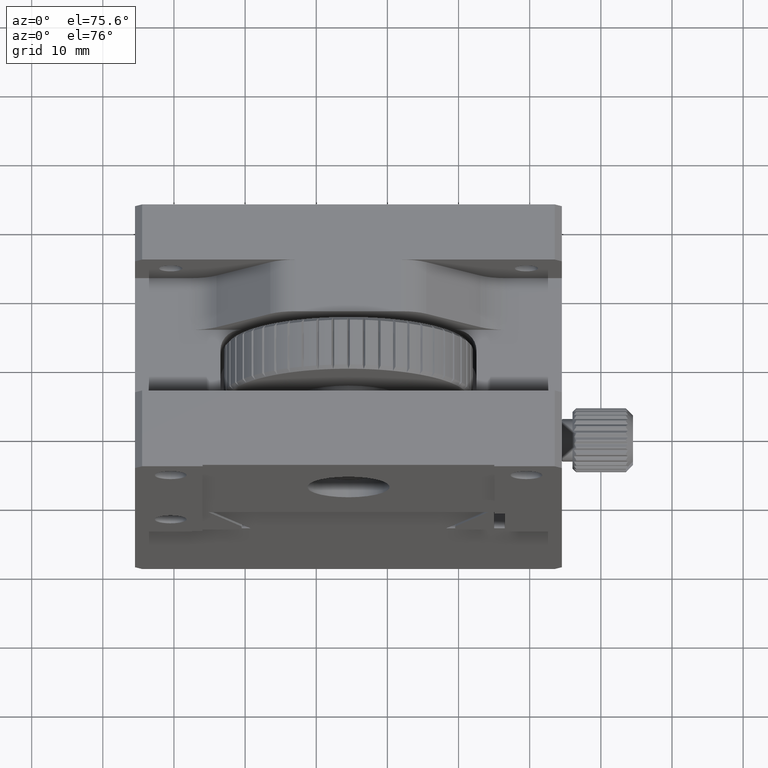
[diagram: clean part render]
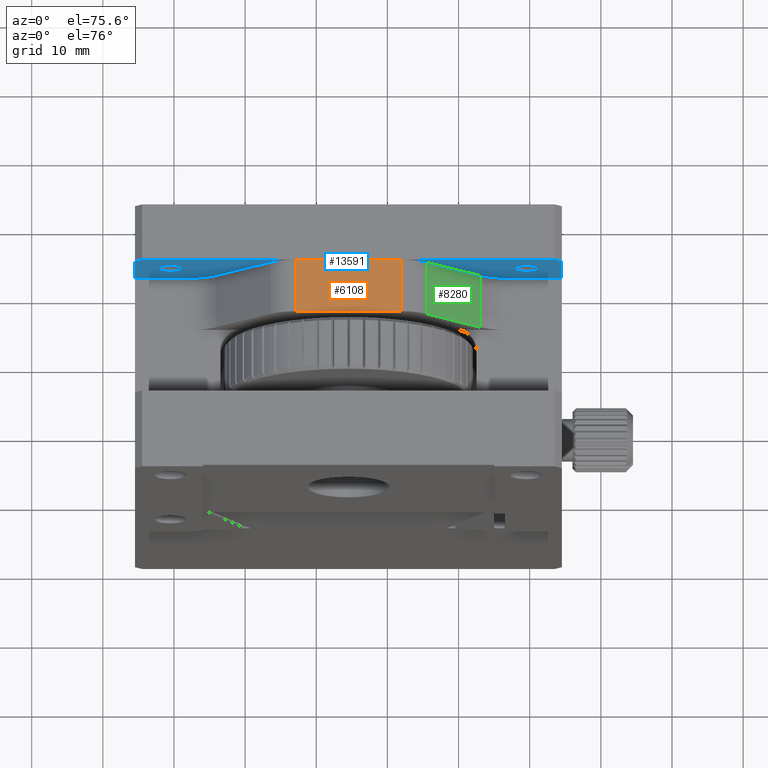
[diagram: same view with three faces highlighted in distinct colors, each labeled with its STEP entity id]
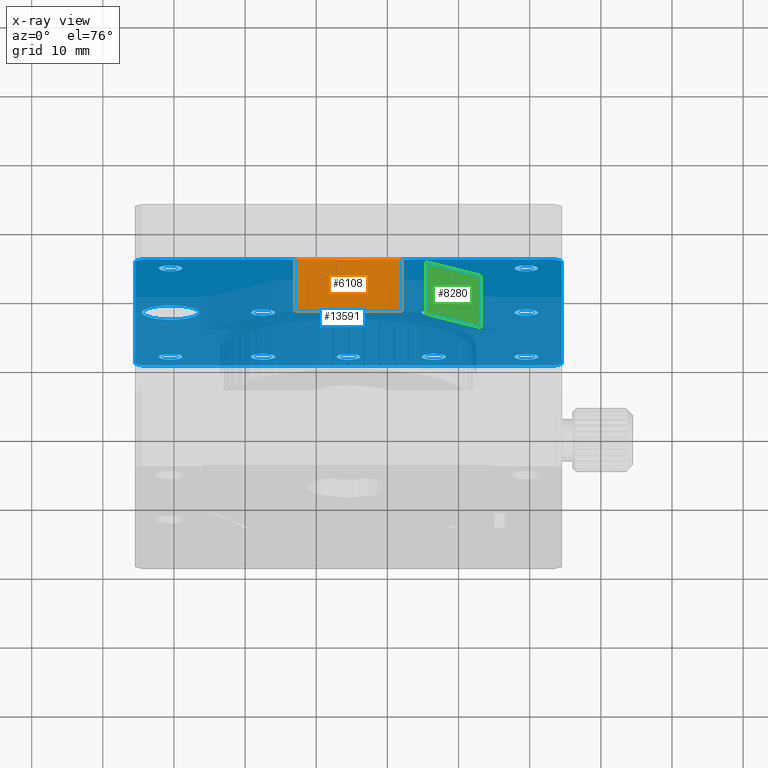
[diagram: x-ray of the same camera — body ghosted, the three highlighted faces saturated]
A machine part, auxiliary view with three faces highlighted in distinct colors.
The next image is the same camera in x-ray (body ghosted, the three faces saturated) — at least one of them is partly hidden behind the body in this view.
Their STEP definitions:

[orange] entity #6108 — the highlighted planar face has unit normal (-0, 0, -1).
#2563 = CARTESIAN_POINT ( 'NONE',  ( 41.95106015016820322, 40.59151725221546769, 95.80549511013728647 ) ) ;
#2827 = EDGE_LOOP ( 'NONE', ( #12907, #14919, #6519, #25784 ) ) ;
#3345 = CARTESIAN_POINT ( 'NONE',  ( 41.95106015016820322, 33.09151725221546769, 95.80549511013728647 ) ) ;
#4065 = LINE ( 'NONE', #20102, #14703 ) ;
#4104 = DIRECTION ( 'NONE',  ( -7.098610909418053587E-15, 0.000000000000000000, -1.000000000000000000 ) ) ;
#4247 = PLANE ( 'NONE',  #5282 ) ;
#4284 = LINE ( 'NONE', #20455, #8356 ) ;
#4597 = EDGE_CURVE ( 'NONE', #21764, #21951, #4065, .T. ) ;
#5179 = VERTEX_POINT ( 'NONE', #8206 ) ;
#5282 = AXIS2_PLACEMENT_3D ( 'NONE', #8145, #4104, #18641 ) ;
#6108 = ADVANCED_FACE ( 'NONE', ( #22310 ), #4247, .F. ) ;
#6519 = ORIENTED_EDGE ( 'NONE', *, *, #13252, .F. ) ;
#7457 = CARTESIAN_POINT ( 'NONE',  ( 4.522127962033668958, 33.09151725221546769, 95.80549511013755648 ) ) ;
#8145 = CARTESIAN_POINT ( 'NONE',  ( 4.522127962033668958, 40.59151725221546769, 95.80549511013755648 ) ) ;
#8206 = CARTESIAN_POINT ( 'NONE',  ( 41.95106015016820322, 40.59151725221546769, 95.80549511013728647 ) ) ;
#8356 = VECTOR ( 'NONE', #15996, 1000.000000000000000 ) ;
#8966 = EDGE_CURVE ( 'NONE', #20197, #21764, #25696, .T. ) ;
#12907 = ORIENTED_EDGE ( 'NONE', *, *, #4597, .F. ) ;
#13209 = DIRECTION ( 'NONE',  ( -0.000000000000000000, -1.000000000000000000, -0.000000000000000000 ) ) ;
#13252 = EDGE_CURVE ( 'NONE', #5179, #20197, #23079, .T. ) ;
#13896 = DIRECTION ( 'NONE',  ( 0.000000000000000000, 1.000000000000000000, 0.000000000000000000 ) ) ;
#14703 = VECTOR ( 'NONE', #13896, 1000.000000000000000 ) ;
#14919 = ORIENTED_EDGE ( 'NONE', *, *, #8966, .F. ) ;
#15416 = DIRECTION ( 'NONE',  ( -1.000000000000000000, 0.000000000000000000, 7.098610909418053587E-15 ) ) ;
#15996 = DIRECTION ( 'NONE',  ( 1.000000000000000000, -0.000000000000000000, -6.982962677686266711E-15 ) ) ;
#18641 = DIRECTION ( 'NONE',  ( -1.000000000000000000, 0.000000000000000000, 7.098610909418053587E-15 ) ) ;
#18870 = VECTOR ( 'NONE', #13209, 1000.000000000000000 ) ;
#20102 = CARTESIAN_POINT ( 'NONE',  ( 27.09319577389917910, 40.59151725221546769, 95.80549511013740016 ) ) ;
#20197 = VERTEX_POINT ( 'NONE', #3345 ) ;
#20416 = EDGE_CURVE ( 'NONE', #21951, #5179, #4284, .T. ) ;
#20455 = CARTESIAN_POINT ( 'NONE',  ( 34.52212796203366452, 40.59151725221546769, 95.80549511013734332 ) ) ;
#21764 = VERTEX_POINT ( 'NONE', #22252 ) ;
#21951 = VERTEX_POINT ( 'NONE', #22901 ) ;
#22252 = CARTESIAN_POINT ( 'NONE',  ( 27.09319577389917910, 33.09151725221546769, 95.80549511013740016 ) ) ;
#22310 = FACE_OUTER_BOUND ( 'NONE', #2827, .T. ) ;
#22901 = CARTESIAN_POINT ( 'NONE',  ( 27.09319577389917910, 40.59151725221546769, 95.80549511013740016 ) ) ;
#23079 = LINE ( 'NONE', #2563, #18870 ) ;
#25696 = LINE ( 'NONE', #7457, #26476 ) ;
#25784 = ORIENTED_EDGE ( 'NONE', *, *, #20416, .F. ) ;
#26476 = VECTOR ( 'NONE', #15416, 1000.000000000000000 ) ;

[blue] entity #13591 — the highlighted planar face has unit normal (0, 1, 0).
#55 = DIRECTION ( 'NONE',  ( 0.000000000000000000, 0.000000000000000000, 1.000000000000000000 ) ) ;
#78 = AXIS2_PLACEMENT_3D ( 'NONE', #12425, #20535, #5833 ) ;
#80 = VECTOR ( 'NONE', #10271, 1000.000000000000000 ) ;
#167 = AXIS2_PLACEMENT_3D ( 'NONE', #12113, #4460, #10246 ) ;
#302 = VERTEX_POINT ( 'NONE', #24460 ) ;
#898 = CARTESIAN_POINT ( 'NONE',  ( 63.52212796202834255, 40.59151725221547480, 95.80549511013829544 ) ) ;
#925 = EDGE_CURVE ( 'NONE', #7728, #7728, #21557, .T. ) ;
#1052 = FACE_BOUND ( 'NONE', #7209, .T. ) ;
#1136 = CARTESIAN_POINT ( 'NONE',  ( 34.52212796202890388, 40.59151725221547480, 83.30549511013803965 ) ) ;
#1149 = ORIENTED_EDGE ( 'NONE', *, *, #9971, .T. ) ;
#1321 = FACE_BOUND ( 'NONE', #21050, .T. ) ;
#1533 = DIRECTION ( 'NONE',  ( 0.000000000000000000, -1.000000000000000000, 0.000000000000000000 ) ) ;
#1556 = CARTESIAN_POINT ( 'NONE',  ( 22.52212796202865519, 40.59151725221547480, 65.80549511013846598 ) ) ;
#1754 = LINE ( 'NONE', #24853, #80 ) ;
#1790 = LINE ( 'NONE', #24613, #25624 ) ;
#2069 = DIRECTION ( 'NONE',  ( 0.000000000000000000, -1.000000000000000000, 0.000000000000000000 ) ) ;
#2138 = EDGE_CURVE ( 'NONE', #5836, #5836, #3504, .T. ) ;
#2221 = DIRECTION ( 'NONE',  ( 0.000000000000000000, -1.000000000000000000, 0.000000000000000000 ) ) ;
#2534 = CARTESIAN_POINT ( 'NONE',  ( 59.52212796202834255, 40.59151725221547480, 65.80549511013829544 ) ) ;
#2631 = CIRCLE ( 'NONE', #17690, 1.649999999999991696 ) ;
#2851 = CARTESIAN_POINT ( 'NONE',  ( 59.52212796202834255, 40.59151725221547480, 92.45549511013828692 ) ) ;
#3256 = VERTEX_POINT ( 'NONE', #18750 ) ;
#3346 = EDGE_CURVE ( 'NONE', #7791, #24306, #1754, .T. ) ;
#3487 = PLANE ( 'NONE',  #5099 ) ;
#3504 = CIRCLE ( 'NONE', #14704, 1.699999999999993072 ) ;
#3720 = VECTOR ( 'NONE', #8320, 1000.000000000000114 ) ;
#3867 = CARTESIAN_POINT ( 'NONE',  ( 4.522127962028336334, 40.59151725221547480, 35.80549511013829544 ) ) ;
#3921 = ORIENTED_EDGE ( 'NONE', *, *, #24916, .F. ) ;
#4165 = ORIENTED_EDGE ( 'NONE', *, *, #9289, .F. ) ;
#4230 = CARTESIAN_POINT ( 'NONE',  ( 59.52212796202834255, 40.59151725221547480, 67.45549511013828692 ) ) ;
#4314 = CARTESIAN_POINT ( 'NONE',  ( 9.522127962028323012, 40.59151725221547480, 42.45549511013828692 ) ) ;
#4452 = VERTEX_POINT ( 'NONE', #21020 ) ;
#4460 = DIRECTION ( 'NONE',  ( 0.000000000000000000, -1.000000000000000000, 0.000000000000000000 ) ) ;
#4630 = CARTESIAN_POINT ( 'NONE',  ( 34.52212796202832834, 40.59151725221547480, 67.45549511013828692 ) ) ;
#4728 = EDGE_CURVE ( 'NONE', #22698, #22698, #2631, .T. ) ;
#4887 = DIRECTION ( 'NONE',  ( 0.000000000000000000, 0.000000000000000000, 1.000000000000000000 ) ) ;
#4947 = AXIS2_PLACEMENT_3D ( 'NONE', #21713, #15253, #23615 ) ;
#5099 = AXIS2_PLACEMENT_3D ( 'NONE', #15621, #20067, #26035 ) ;
#5141 = CARTESIAN_POINT ( 'NONE',  ( 4.522127962028336334, 40.59151725221547480, 36.80549511013829544 ) ) ;
#5168 = EDGE_CURVE ( 'NONE', #8132, #8132, #21611, .T. ) ;
#5265 = CIRCLE ( 'NONE', #78, 1.649999999999998579 ) ;
#5511 = EDGE_CURVE ( 'NONE', #21565, #3256, #9921, .T. ) ;
#5560 = EDGE_LOOP ( 'NONE', ( #6887 ) ) ;
#5621 = DIRECTION ( 'NONE',  ( 0.7071067811865500152, 0.000000000000000000, -0.7071067811865451302 ) ) ;
#5626 = EDGE_CURVE ( 'NONE', #16755, #16755, #20752, .T. ) ;
#5647 = FACE_BOUND ( 'NONE', #19649, .T. ) ;
#5705 = CARTESIAN_POINT ( 'NONE',  ( 9.522127962028323012, 40.59151725221547480, 92.45549511013828692 ) ) ;
#5780 = FACE_BOUND ( 'NONE', #6683, .T. ) ;
#5833 = DIRECTION ( 'NONE',  ( 0.000000000000000000, 0.000000000000000000, 1.000000000000000000 ) ) ;
#5836 = VERTEX_POINT ( 'NONE', #15814 ) ;
#6020 = CARTESIAN_POINT ( 'NONE',  ( 5.522127962028357651, 40.59151725221546769, 95.80549511013829544 ) ) ;
#6220 = CARTESIAN_POINT ( 'NONE',  ( 34.52212796202832834, 40.59151725221547480, 40.80549511013829544 ) ) ;
#6224 = ORIENTED_EDGE ( 'NONE', *, *, #16294, .F. ) ;
#6327 = AXIS2_PLACEMENT_3D ( 'NONE', #17840, #14073, #11647 ) ;
#6442 = ORIENTED_EDGE ( 'NONE', *, *, #8843, .T. ) ;
#6506 = CARTESIAN_POINT ( 'NONE',  ( 9.522127962028326564, 40.59151725221547480, 69.80549511013829544 ) ) ;
#6607 = ORIENTED_EDGE ( 'NONE', *, *, #2138, .F. ) ;
#6665 = CARTESIAN_POINT ( 'NONE',  ( 63.52212796202832834, 40.59151725221546769, 35.80549511013829544 ) ) ;
#6683 = EDGE_LOOP ( 'NONE', ( #25667 ) ) ;
#6887 = ORIENTED_EDGE ( 'NONE', *, *, #21033, .F. ) ;
#6996 = EDGE_CURVE ( 'NONE', #21565, #25939, #16674, .T. ) ;
#7098 = CIRCLE ( 'NONE', #4947, 1.649999999999991696 ) ;
#7099 = ORIENTED_EDGE ( 'NONE', *, *, #3346, .F. ) ;
#7209 = EDGE_LOOP ( 'NONE', ( #6607 ) ) ;
#7274 = EDGE_CURVE ( 'NONE', #16347, #16347, #7894, .T. ) ;
#7720 = CARTESIAN_POINT ( 'NONE',  ( 5.522127962028357651, 40.59151725221547480, 95.80549511013829544 ) ) ;
#7728 = VERTEX_POINT ( 'NONE', #5705 ) ;
#7762 = ORIENTED_EDGE ( 'NONE', *, *, #7274, .F. ) ;
#7791 = VERTEX_POINT ( 'NONE', #7720 ) ;
#7799 = FACE_BOUND ( 'NONE', #16326, .T. ) ;
#7894 = CIRCLE ( 'NONE', #20383, 1.699999999999993072 ) ;
#8086 = VERTEX_POINT ( 'NONE', #4314 ) ;
#8132 = VERTEX_POINT ( 'NONE', #4230 ) ;
#8240 = EDGE_LOOP ( 'NONE', ( #15479 ) ) ;
#8303 = VECTOR ( 'NONE', #12481, 1000.000000000000000 ) ;
#8320 = DIRECTION ( 'NONE',  ( -0.7071067811865451302, 0.000000000000000000, -0.7071067811865500152 ) ) ;
#8823 = VERTEX_POINT ( 'NONE', #11111 ) ;
#8843 = EDGE_CURVE ( 'NONE', #15426, #11116, #17038, .T. ) ;
#9289 = EDGE_CURVE ( 'NONE', #12564, #12564, #21356, .T. ) ;
#9396 = AXIS2_PLACEMENT_3D ( 'NONE', #12678, #25114, #14836 ) ;
#9428 = ORIENTED_EDGE ( 'NONE', *, *, #5168, .F. ) ;
#9549 = EDGE_LOOP ( 'NONE', ( #23854 ) ) ;
#9564 = FACE_BOUND ( 'NONE', #12320, .T. ) ;
#9698 = CARTESIAN_POINT ( 'NONE',  ( 22.52212796202847045, 40.59151725221547480, 40.80549511013845176 ) ) ;
#9825 = FACE_BOUND ( 'NONE', #12518, .T. ) ;
#9921 = LINE ( 'NONE', #26138, #13421 ) ;
#9971 = EDGE_CURVE ( 'NONE', #7791, #25939, #20590, .T. ) ;
#10154 = AXIS2_PLACEMENT_3D ( 'NONE', #17144, #12959, #4887 ) ;
#10171 = CARTESIAN_POINT ( 'NONE',  ( 46.52212796202864808, 40.59151725221547480, 65.80549511013828123 ) ) ;
#10246 = DIRECTION ( 'NONE',  ( 0.000000000000000000, 0.000000000000000000, 1.000000000000000000 ) ) ;
#10271 = DIRECTION ( 'NONE',  ( 1.000000000000000000, 0.000000000000000000, -0.000000000000000000 ) ) ;
#10455 = DIRECTION ( 'NONE',  ( 0.000000000000000000, 0.000000000000000000, 1.000000000000000000 ) ) ;
#10519 = VECTOR ( 'NONE', #19485, 1000.000000000000000 ) ;
#10721 = ORIENTED_EDGE ( 'NONE', *, *, #20785, .F. ) ;
#10947 = ORIENTED_EDGE ( 'NONE', *, *, #12550, .F. ) ;
#11111 = CARTESIAN_POINT ( 'NONE',  ( 64.52212796202834966, 40.59151725221547480, 94.80549511013830966 ) ) ;
#11116 = VERTEX_POINT ( 'NONE', #17544 ) ;
#11211 = VERTEX_POINT ( 'NONE', #4630 ) ;
#11521 = EDGE_CURVE ( 'NONE', #302, #302, #25737, .T. ) ;
#11578 = DIRECTION ( 'NONE',  ( 0.000000000000000000, -1.000000000000000000, 0.000000000000000000 ) ) ;
#11647 = DIRECTION ( 'NONE',  ( 0.000000000000000000, 0.000000000000000000, 1.000000000000000000 ) ) ;
#11765 = LINE ( 'NONE', #13792, #26597 ) ;
#11832 = FACE_BOUND ( 'NONE', #23993, .T. ) ;
#12113 = CARTESIAN_POINT ( 'NONE',  ( 59.52212796202834255, 40.59151725221547480, 90.80549511013829544 ) ) ;
#12320 = EDGE_LOOP ( 'NONE', ( #4165 ) ) ;
#12404 = DIRECTION ( 'NONE',  ( 0.000000000000000000, -1.000000000000000000, 0.000000000000000000 ) ) ;
#12425 = CARTESIAN_POINT ( 'NONE',  ( 34.52212796202832834, 40.59151725221547480, 65.80549511013829544 ) ) ;
#12471 = CARTESIAN_POINT ( 'NONE',  ( 9.522127962028326564, 40.59151725221547480, 65.80549511013829544 ) ) ;
#12481 = DIRECTION ( 'NONE',  ( 0.000000000000000000, -0.000000000000000000, 1.000000000000000000 ) ) ;
#12503 = DIRECTION ( 'NONE',  ( 0.000000000000000000, -1.000000000000000000, 0.000000000000000000 ) ) ;
#12518 = EDGE_LOOP ( 'NONE', ( #25810 ) ) ;
#12550 = EDGE_CURVE ( 'NONE', #18626, #18626, #23157, .T. ) ;
#12564 = VERTEX_POINT ( 'NONE', #20802 ) ;
#12678 = CARTESIAN_POINT ( 'NONE',  ( 34.52212796202832834, 40.59151725221547480, 90.80549511013828123 ) ) ;
#12959 = DIRECTION ( 'NONE',  ( 0.000000000000000000, -1.000000000000000000, 0.000000000000000000 ) ) ;
#13327 = DIRECTION ( 'NONE',  ( 0.000000000000000000, 0.000000000000000000, 1.000000000000000000 ) ) ;
#13421 = VECTOR ( 'NONE', #5621, 1000.000000000000114 ) ;
#13454 = FACE_BOUND ( 'NONE', #25258, .T. ) ;
#13591 = ADVANCED_FACE ( 'NONE', ( #22101, #9825, #7799, #17896, #13454, #1321, #17639, #19538, #16016, #5647, #11832, #1052, #9564, #24257, #5780 ), #3487, .F. ) ;
#13792 = CARTESIAN_POINT ( 'NONE',  ( 64.52212796202834966, 40.59151725221546769, 94.80549511013830966 ) ) ;
#14073 = DIRECTION ( 'NONE',  ( 0.000000000000000000, -1.000000000000000000, 0.000000000000000000 ) ) ;
#14075 = AXIS2_PLACEMENT_3D ( 'NONE', #9698, #11578, #13327 ) ;
#14082 = EDGE_CURVE ( 'NONE', #8823, #24306, #11765, .T. ) ;
#14704 = AXIS2_PLACEMENT_3D ( 'NONE', #1556, #26407, #26141 ) ;
#14813 = CARTESIAN_POINT ( 'NONE',  ( 46.52212796202864808, 40.59151725221547480, 67.50549511013828408 ) ) ;
#14836 = DIRECTION ( 'NONE',  ( 0.000000000000000000, 0.000000000000000000, 1.000000000000000000 ) ) ;
#15008 = ORIENTED_EDGE ( 'NONE', *, *, #14082, .T. ) ;
#15253 = DIRECTION ( 'NONE',  ( 0.000000000000000000, -1.000000000000000000, 0.000000000000000000 ) ) ;
#15311 = LINE ( 'NONE', #23543, #10519 ) ;
#15426 = VERTEX_POINT ( 'NONE', #21128 ) ;
#15479 = ORIENTED_EDGE ( 'NONE', *, *, #21535, .F. ) ;
#15621 = CARTESIAN_POINT ( 'NONE',  ( 4.522127962028336334, 40.59151725221547480, 35.80549511013829544 ) ) ;
#15814 = CARTESIAN_POINT ( 'NONE',  ( 22.52212796202865519, 40.59151725221547480, 67.50549511013845461 ) ) ;
#15886 = ORIENTED_EDGE ( 'NONE', *, *, #5511, .T. ) ;
#15922 = ORIENTED_EDGE ( 'NONE', *, *, #6996, .F. ) ;
#16016 = FACE_BOUND ( 'NONE', #16244, .T. ) ;
#16244 = EDGE_LOOP ( 'NONE', ( #3921 ) ) ;
#16294 = EDGE_CURVE ( 'NONE', #11211, #11211, #5265, .T. ) ;
#16326 = EDGE_LOOP ( 'NONE', ( #10947 ) ) ;
#16347 = VERTEX_POINT ( 'NONE', #22968 ) ;
#16596 = DIRECTION ( 'NONE',  ( 0.000000000000000000, 0.000000000000000000, 1.000000000000000000 ) ) ;
#16674 = LINE ( 'NONE', #3867, #8303 ) ;
#16707 = VERTEX_POINT ( 'NONE', #14813 ) ;
#16755 = VERTEX_POINT ( 'NONE', #6506 ) ;
#17038 = LINE ( 'NONE', #6665, #26051 ) ;
#17144 = CARTESIAN_POINT ( 'NONE',  ( 46.52212796202847045, 40.59151725221547480, 40.80549511013827413 ) ) ;
#17544 = CARTESIAN_POINT ( 'NONE',  ( 64.52212796202834966, 40.59151725221547480, 36.80549511013830255 ) ) ;
#17633 = EDGE_CURVE ( 'NONE', #21466, #21466, #22949, .T. ) ;
#17639 = FACE_BOUND ( 'NONE', #8240, .T. ) ;
#17690 = AXIS2_PLACEMENT_3D ( 'NONE', #6220, #12404, #16596 ) ;
#17840 = CARTESIAN_POINT ( 'NONE',  ( 9.522127962028323012, 40.59151725221547480, 40.80549511013829544 ) ) ;
#17896 = FACE_BOUND ( 'NONE', #9549, .T. ) ;
#18491 = CARTESIAN_POINT ( 'NONE',  ( 34.52212796202832834, 40.59151725221547480, 42.45549511013828692 ) ) ;
#18626 = VERTEX_POINT ( 'NONE', #22427 ) ;
#18750 = CARTESIAN_POINT ( 'NONE',  ( 5.522127962028344328, 40.59151725221547480, 35.80549511013829544 ) ) ;
#19343 = EDGE_LOOP ( 'NONE', ( #20048 ) ) ;
#19485 = DIRECTION ( 'NONE',  ( -1.000000000000000000, -0.000000000000000000, 0.000000000000000000 ) ) ;
#19486 = DIRECTION ( 'NONE',  ( 0.000000000000000000, 0.000000000000000000, 1.000000000000000000 ) ) ;
#19538 = FACE_BOUND ( 'NONE', #19343, .T. ) ;
#19649 = EDGE_LOOP ( 'NONE', ( #24763 ) ) ;
#20048 = ORIENTED_EDGE ( 'NONE', *, *, #4728, .F. ) ;
#20067 = DIRECTION ( 'NONE',  ( 0.000000000000000000, 1.000000000000000000, 0.000000000000000000 ) ) ;
#20383 = AXIS2_PLACEMENT_3D ( 'NONE', #1136, #1533, #19486 ) ;
#20535 = DIRECTION ( 'NONE',  ( 0.000000000000000000, -1.000000000000000000, 0.000000000000000000 ) ) ;
#20590 = LINE ( 'NONE', #6020, #3720 ) ;
#20635 = CARTESIAN_POINT ( 'NONE',  ( 4.522127962028344328, 40.59151725221547480, 94.80549511013828123 ) ) ;
#20752 = CIRCLE ( 'NONE', #25520, 4.000000000000003553 ) ;
#20785 = EDGE_CURVE ( 'NONE', #15426, #3256, #15311, .T. ) ;
#20802 = CARTESIAN_POINT ( 'NONE',  ( 46.52212796202847045, 40.59151725221547480, 42.50549511013827697 ) ) ;
#20901 = EDGE_CURVE ( 'NONE', #8823, #11116, #1790, .T. ) ;
#21020 = CARTESIAN_POINT ( 'NONE',  ( 59.52212796202834255, 40.59151725221547480, 42.45549511013827981 ) ) ;
#21033 = EDGE_CURVE ( 'NONE', #16707, #16707, #21285, .T. ) ;
#21050 = EDGE_LOOP ( 'NONE', ( #6224 ) ) ;
#21090 = DIRECTION ( 'NONE',  ( 0.7071067811865474617, 0.000000000000000000, 0.7071067811865474617 ) ) ;
#21128 = CARTESIAN_POINT ( 'NONE',  ( 63.52212796202832834, 40.59151725221547480, 35.80549511013829544 ) ) ;
#21285 = CIRCLE ( 'NONE', #24748, 1.700000000000007061 ) ;
#21356 = CIRCLE ( 'NONE', #10154, 1.700000000000000178 ) ;
#21415 = EDGE_LOOP ( 'NONE', ( #15886, #10721, #6442, #23658, #15008, #7099, #1149, #15922 ) ) ;
#21466 = VERTEX_POINT ( 'NONE', #2851 ) ;
#21500 = CARTESIAN_POINT ( 'NONE',  ( 9.522127962028323012, 40.59151725221547480, 90.80549511013828123 ) ) ;
#21535 = EDGE_CURVE ( 'NONE', #4452, #4452, #7098, .T. ) ;
#21557 = CIRCLE ( 'NONE', #21987, 1.649999999999998579 ) ;
#21565 = VERTEX_POINT ( 'NONE', #5141 ) ;
#21611 = CIRCLE ( 'NONE', #25935, 1.649999999999998579 ) ;
#21713 = CARTESIAN_POINT ( 'NONE',  ( 59.52212796202834255, 40.59151725221547480, 40.80549511013828834 ) ) ;
#21987 = AXIS2_PLACEMENT_3D ( 'NONE', #21500, #25714, #23798 ) ;
#22101 = FACE_OUTER_BOUND ( 'NONE', #21415, .T. ) ;
#22319 = DIRECTION ( 'NONE',  ( -0.000000000000000000, 0.000000000000000000, -1.000000000000000000 ) ) ;
#22427 = CARTESIAN_POINT ( 'NONE',  ( 34.52212796202832834, 40.59151725221547480, 92.45549511013828692 ) ) ;
#22698 = VERTEX_POINT ( 'NONE', #18491 ) ;
#22949 = CIRCLE ( 'NONE', #167, 1.649999999999984812 ) ;
#22968 = CARTESIAN_POINT ( 'NONE',  ( 34.52212796202890388, 40.59151725221547480, 85.00549511013804249 ) ) ;
#23041 = DIRECTION ( 'NONE',  ( 0.000000000000000000, 0.000000000000000000, 1.000000000000000000 ) ) ;
#23157 = CIRCLE ( 'NONE', #9396, 1.649999999999998579 ) ;
#23543 = CARTESIAN_POINT ( 'NONE',  ( 4.522127962028336334, 40.59151725221547480, 35.80549511013829544 ) ) ;
#23615 = DIRECTION ( 'NONE',  ( 0.000000000000000000, 0.000000000000000000, 1.000000000000000000 ) ) ;
#23658 = ORIENTED_EDGE ( 'NONE', *, *, #20901, .F. ) ;
#23798 = DIRECTION ( 'NONE',  ( 0.000000000000000000, 0.000000000000000000, 1.000000000000000000 ) ) ;
#23854 = ORIENTED_EDGE ( 'NONE', *, *, #17633, .F. ) ;
#23993 = EDGE_LOOP ( 'NONE', ( #7762 ) ) ;
#24187 = DIRECTION ( 'NONE',  ( -0.7071067811865500152, 0.000000000000000000, 0.7071067811865451302 ) ) ;
#24257 = FACE_BOUND ( 'NONE', #5560, .T. ) ;
#24306 = VERTEX_POINT ( 'NONE', #898 ) ;
#24460 = CARTESIAN_POINT ( 'NONE',  ( 22.52212796202847045, 40.59151725221547480, 42.50549511013845461 ) ) ;
#24613 = CARTESIAN_POINT ( 'NONE',  ( 64.52212796202834966, 40.59151725221547480, 35.80549511013829544 ) ) ;
#24748 = AXIS2_PLACEMENT_3D ( 'NONE', #10171, #2069, #55 ) ;
#24763 = ORIENTED_EDGE ( 'NONE', *, *, #5626, .F. ) ;
#24853 = CARTESIAN_POINT ( 'NONE',  ( 4.522127962028336334, 40.59151725221547480, 95.80549511013829544 ) ) ;
#24916 = EDGE_CURVE ( 'NONE', #8086, #8086, #26149, .T. ) ;
#25114 = DIRECTION ( 'NONE',  ( 0.000000000000000000, -1.000000000000000000, 0.000000000000000000 ) ) ;
#25258 = EDGE_LOOP ( 'NONE', ( #9428 ) ) ;
#25520 = AXIS2_PLACEMENT_3D ( 'NONE', #12471, #2221, #10455 ) ;
#25624 = VECTOR ( 'NONE', #22319, 1000.000000000000000 ) ;
#25667 = ORIENTED_EDGE ( 'NONE', *, *, #11521, .F. ) ;
#25714 = DIRECTION ( 'NONE',  ( 0.000000000000000000, -1.000000000000000000, 0.000000000000000000 ) ) ;
#25737 = CIRCLE ( 'NONE', #14075, 1.700000000000000178 ) ;
#25810 = ORIENTED_EDGE ( 'NONE', *, *, #925, .F. ) ;
#25935 = AXIS2_PLACEMENT_3D ( 'NONE', #2534, #12503, #23041 ) ;
#25939 = VERTEX_POINT ( 'NONE', #20635 ) ;
#26035 = DIRECTION ( 'NONE',  ( 0.000000000000000000, -0.000000000000000000, 1.000000000000000000 ) ) ;
#26051 = VECTOR ( 'NONE', #21090, 1000.000000000000114 ) ;
#26138 = CARTESIAN_POINT ( 'NONE',  ( 4.522127962028336334, 40.59151725221546769, 36.80549511013829544 ) ) ;
#26141 = DIRECTION ( 'NONE',  ( 0.000000000000000000, 0.000000000000000000, 1.000000000000000000 ) ) ;
#26149 = CIRCLE ( 'NONE', #6327, 1.649999999999991696 ) ;
#26407 = DIRECTION ( 'NONE',  ( 0.000000000000000000, -1.000000000000000000, 0.000000000000000000 ) ) ;
#26597 = VECTOR ( 'NONE', #24187, 1000.000000000000114 ) ;

[green] entity #8280 — the highlighted planar face has unit normal (-0.7071, 0, -0.7071).
#1739 = EDGE_LOOP ( 'NONE', ( #9949, #1913, #24466, #24516 ) ) ;
#1913 = ORIENTED_EDGE ( 'NONE', *, *, #9350, .F. ) ;
#2396 = VECTOR ( 'NONE', #5629, 1000.000000000000000 ) ;
#3236 = CARTESIAN_POINT ( 'NONE',  ( 45.48659405610093387, 33.09151725221546769, 94.34102901606999581 ) ) ;
#3703 = VECTOR ( 'NONE', #12696, 1000.000000000000000 ) ;
#4134 = LINE ( 'NONE', #22473, #24863 ) ;
#4423 = PLANE ( 'NONE',  #15667 ) ;
#5464 = LINE ( 'NONE', #24339, #25736 ) ;
#5629 = DIRECTION ( 'NONE',  ( 0.000000000000000000, 1.000000000000000000, 0.000000000000000000 ) ) ;
#5902 = CARTESIAN_POINT ( 'NONE',  ( 53.05766186796633122, 40.59151725221546769, 86.76996120420447767 ) ) ;
#5930 = VERTEX_POINT ( 'NONE', #18098 ) ;
#6166 = VERTEX_POINT ( 'NONE', #3236 ) ;
#8280 = ADVANCED_FACE ( 'NONE', ( #22353 ), #4423, .F. ) ;
#8538 = CARTESIAN_POINT ( 'NONE',  ( 44.02212796203367873, 33.09151725221546769, 95.80549511013727226 ) ) ;
#9350 = EDGE_CURVE ( 'NONE', #25998, #6166, #12558, .T. ) ;
#9848 = CARTESIAN_POINT ( 'NONE',  ( 53.05766186796633122, 33.09151725221546769, 86.76996120420447767 ) ) ;
#9875 = EDGE_CURVE ( 'NONE', #6166, #5930, #26015, .T. ) ;
#9949 = ORIENTED_EDGE ( 'NONE', *, *, #9875, .F. ) ;
#10210 = DIRECTION ( 'NONE',  ( -0.7071067811865533459, 0.000000000000000000, -0.7071067811865416886 ) ) ;
#12558 = LINE ( 'NONE', #8538, #3703 ) ;
#12606 = DIRECTION ( 'NONE',  ( 0.000000000000000000, 1.000000000000000000, 0.000000000000000000 ) ) ;
#12696 = DIRECTION ( 'NONE',  ( -0.7071067811865416886, 0.000000000000000000, 0.7071067811865533459 ) ) ;
#15667 = AXIS2_PLACEMENT_3D ( 'NONE', #20724, #10210, #24517 ) ;
#18098 = CARTESIAN_POINT ( 'NONE',  ( 45.48659405610093387, 40.59151725221546769, 94.34102901606999581 ) ) ;
#20724 = CARTESIAN_POINT ( 'NONE',  ( 44.02212796203367873, 40.59151725221546769, 95.80549511013727226 ) ) ;
#21945 = CARTESIAN_POINT ( 'NONE',  ( 45.48659405610093387, 40.59151725221546769, 94.34102901606999581 ) ) ;
#22041 = DIRECTION ( 'NONE',  ( 0.7071067811865415775, 0.000000000000000000, -0.7071067811865535679 ) ) ;
#22353 = FACE_OUTER_BOUND ( 'NONE', #1739, .T. ) ;
#22473 = CARTESIAN_POINT ( 'NONE',  ( 53.05766186796633122, 40.59151725221546769, 86.76996120420447767 ) ) ;
#24339 = CARTESIAN_POINT ( 'NONE',  ( 45.48659405610093387, 40.59151725221546769, 94.34102901606999581 ) ) ;
#24466 = ORIENTED_EDGE ( 'NONE', *, *, #24536, .T. ) ;
#24516 = ORIENTED_EDGE ( 'NONE', *, *, #25006, .F. ) ;
#24517 = DIRECTION ( 'NONE',  ( -0.7071067811865416886, 0.000000000000000000, 0.7071067811865533459 ) ) ;
#24536 = EDGE_CURVE ( 'NONE', #25998, #26406, #4134, .T. ) ;
#24863 = VECTOR ( 'NONE', #12606, 1000.000000000000000 ) ;
#25006 = EDGE_CURVE ( 'NONE', #5930, #26406, #5464, .T. ) ;
#25736 = VECTOR ( 'NONE', #22041, 1000.000000000000000 ) ;
#25998 = VERTEX_POINT ( 'NONE', #9848 ) ;
#26015 = LINE ( 'NONE', #21945, #2396 ) ;
#26406 = VERTEX_POINT ( 'NONE', #5902 ) ;